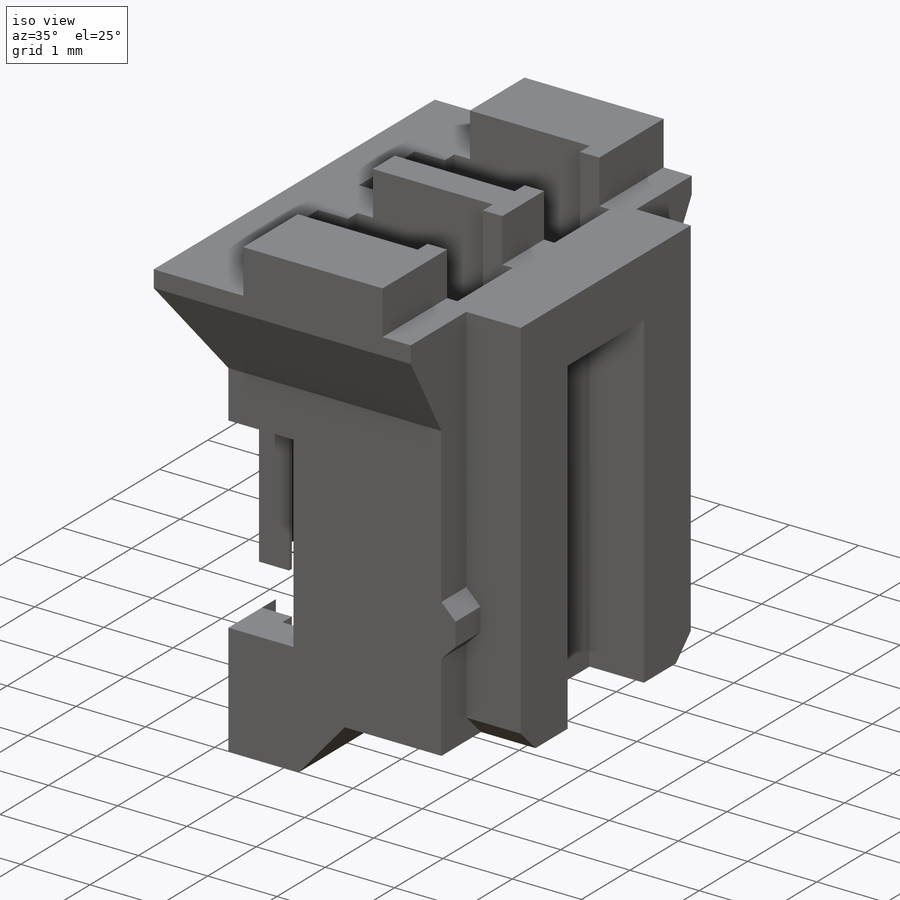
[diagram: iso view]
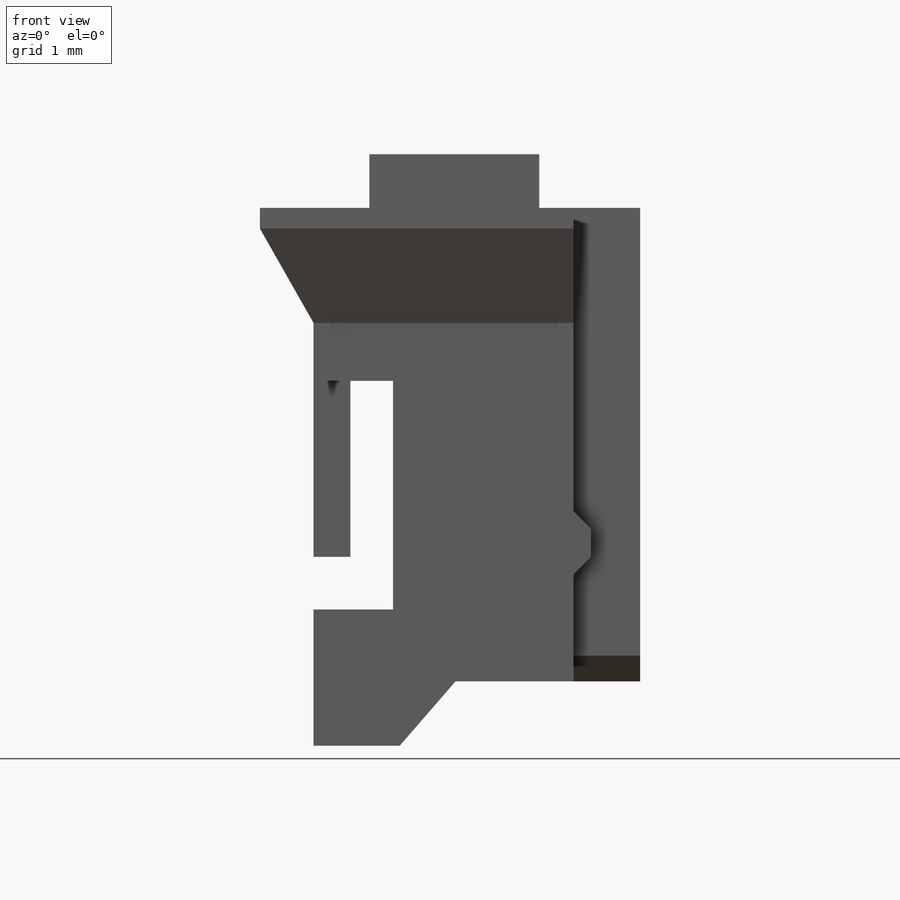
[diagram: front view]
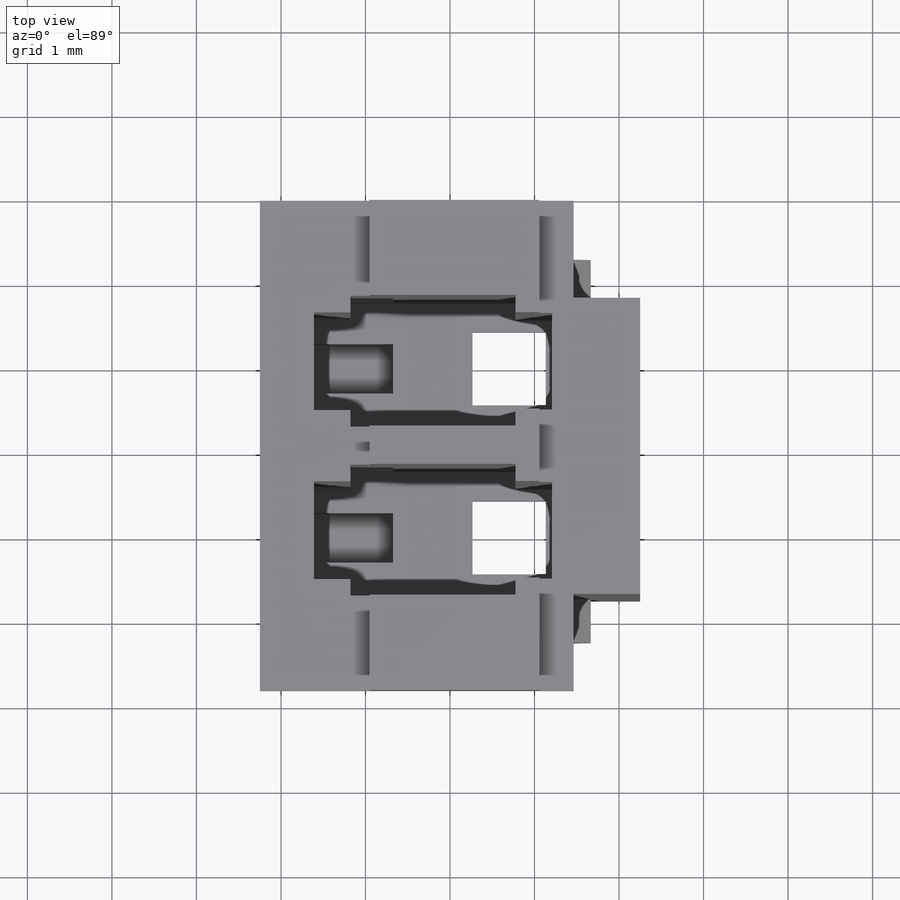
[diagram: top view]
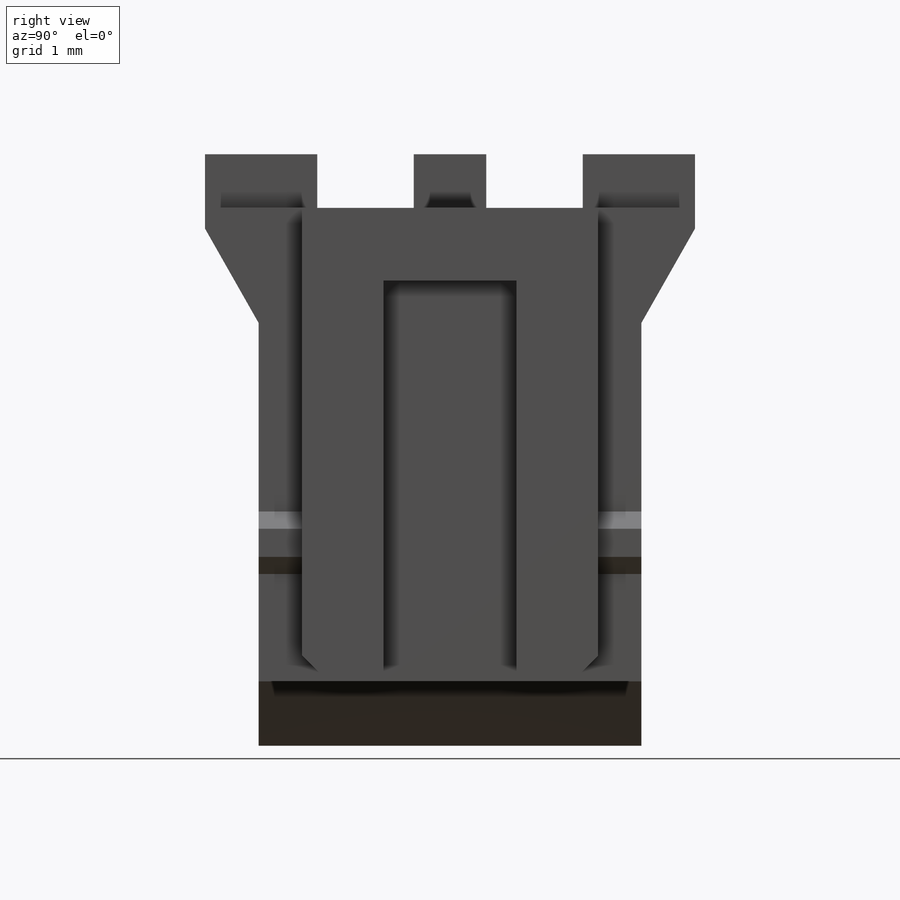
[diagram: right view]
SOLIDWORKS PART (.sldprt)
format: sldprt  version: not decoded by parser v0  size: 425,984 bytes
history: native  units: mm
features: sketch x10, cut_extrude x8, plane x3, extrude x2, material x1, pattern_linear x1, mirror x1 (+8 scaffold rows collapsed)
feature tree (34):
  scaffold x8  (default folders/planes/origin — collapsed)
  material  "Material <not specified>"
  plane  "YZ"
  plane  "XY"
  plane  "XZ"
  sketch  "Sketch1"  dims[Length=5.8mm D2=4.5mm]
  extrude  "Extrude1"  Depth=7mm
  sketch  "Sketch10"  dims[c1.D1=2.8448mm c1.D2=0.762mm c1.D3=2.1844mm c1.D4=~1.046879mm c1.D5=5.0038mm c1.D6=6.1214mm c2.D4=0.635mm c2.D7=1.3208mm c2.D8=~0.989336mm c3.D7=1.1938mm c3.D8=1.2954mm c3.D2=0.0mm]
  cut_extrude  "Cut-Extrude7"  [1 undecoded]
  sketch  "Sketch17"  dims[D1=~1.282089mm]
  cut_extrude  "Cut-Extrude13"  [1 undecoded]
  sketch  "Sketch3"  dims[c1.D1=1.9558mm c1.D2=1.0668mm c1.D3=1.9mm c2.D1=1.0668mm c2.D2=0.1mm]
  cut_extrude  "Mating Side Chamfers"  Depth=0.508mm
  sketch  "Sketch18"  dims[c1.D1=0.9652mm c1.D2=~0.49712mm c2.D2=225.0deg c2.D3=0.8636mm c2.D4=0.6604mm c2.D5=1.5748mm]
  cut_extrude  "Polarizing Keyway"  Depth=0.7874mm
  sketch  "Sketch4"  dims[c1.D1=0.0mm c1.D2=0.0mm c2.D1=0.1mm c2.D2=0.1mm c3.D1=0.1mm]
  cut_extrude  "Terminal Holes"  [1 undecoded]
  sketch  "Sketch14"  dims[c1.D2=~0.324035mm c1.D3=0.4mm c1.D4=0.324mm c1.D1=1.0414mm c2.D2=0.4318mm c2.D3=0.2032mm c2.D4=1.5494mm c2.D5=0.2032mm c3.D3=~1.158517mm c3.D6=2.8194mm c3.D1=0.4mm c4.D3=0.4mm]
  cut_extrude  "Terminal Cutout"  Depth=0.508mm
  sketch  "Sketch19"  dims[D1=0.762mm D2=1.27mm D3=0.6858mm D4=2.2352mm D5=1.6129mm D6=0.5842mm D7=0.5842mm]
  sketch  "Sketch11"  dims[c1.D1=~0.096165mm c1.D2=~0.314358mm c1.D3=~0.180247mm c1.D4=~0.36998mm c1.D5=~0.559714mm c1.D6=~0.73996mm c2.D3=~0.180247mm c2.D4=~0.36998mm c2.D5=~0.374141mm c2.D1=~0.73996mm c3.D1=45.0deg c3.D2=0.2032mm c3.D3=~0.33356mm c3.D4=1.27mm]
  extrude  "Ramp1"  Depth=0.7874mm
  cut_extrude  "TerminalLock Cutout"  Depth=0.9398mm
  sketch  "Sketch20"
  cut_extrude  "Cut-Extrude16"  [1 undecoded]
  pattern_linear  "LPattern2"  Count1=2 Count2=1 Spacing1=2mm Spacing2=50mm Rows=2
  mirror  "Mirror1"
decode coverage: 16 of 22 modeling features carry decoded parameters
note: ~ marks probable driven/reference dimensions
note: 4 parameter values undecoded
summary: no parameter record found for 4 features
note: suppression state not decoded; provenance and decode notes live in map.json
